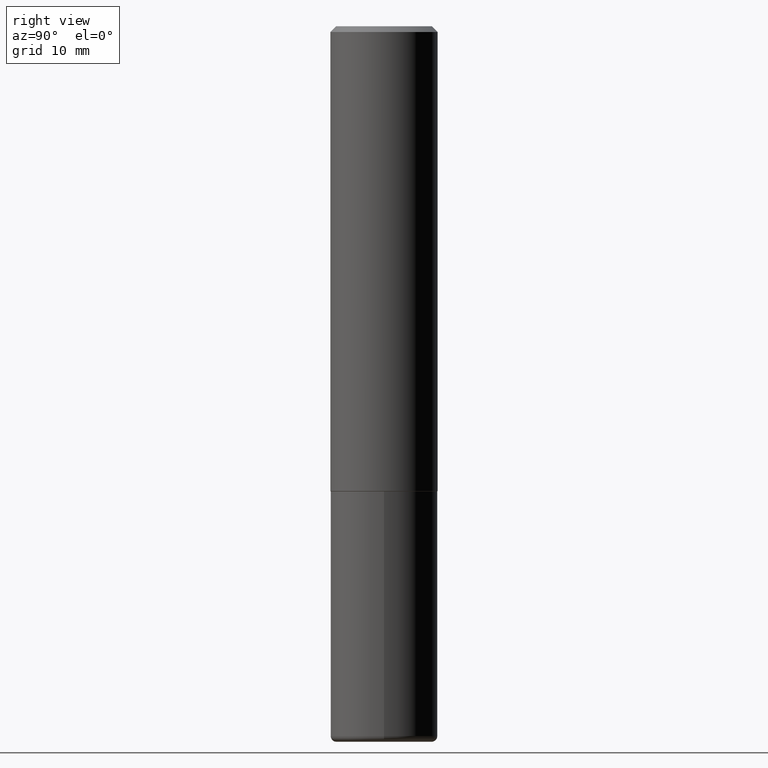
[diagram: clean part render]
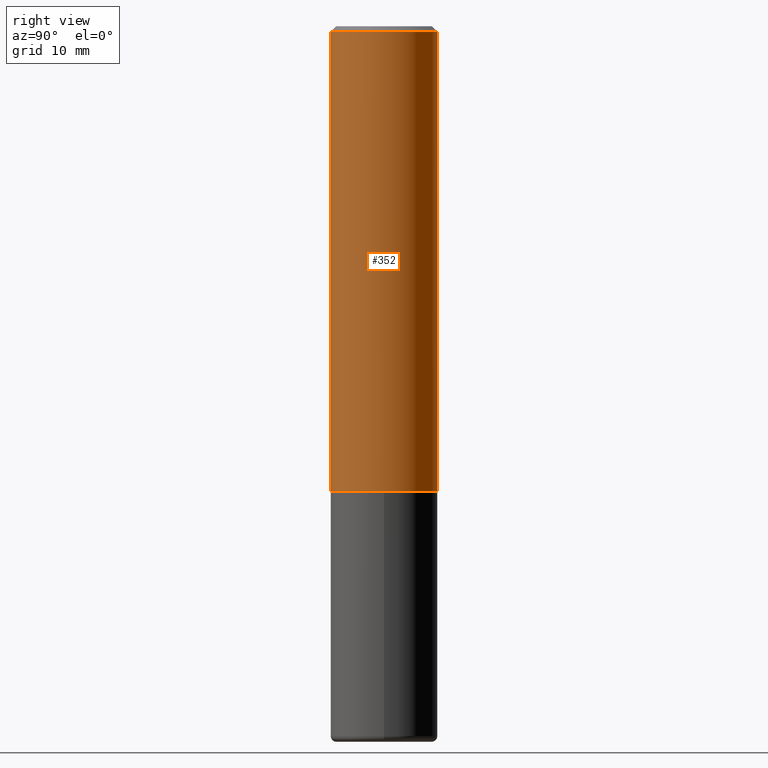
[diagram: same view with one face highlighted and labeled with its STEP entity id]
A machine part, right view. The second image highlights one B-rep face of the part: STEP entity #352.
In plain terms, the highlighted cylindrical surface (partial cylindrical patch) has radius 4.7625 mm, axis along (-0, 0, 1).
Its self-contained STEP definition (entity closure, byte-faithful):
#28 = EDGE_CURVE ( 'NONE', #301, #278, #265, .T. ) ;
#31 = EDGE_CURVE ( 'NONE', #260, #278, #238, .T. ) ;
#42 = CARTESIAN_POINT ( 'NONE',  ( 3.948314948245825329E-29, -5.703284005328150284E-15, -1.624000000000000110 ) ) ;
#45 = DIRECTION ( 'NONE',  ( -2.431228416407527584E-29, 3.511874387517332860E-15, 1.000000000000000000 ) ) ;
#46 = CARTESIAN_POINT ( 'NONE',  ( -1.286343374582161379E-15, -0.1875000000000000555, -0.01999999999999942449 ) ) ;
#60 = DIRECTION ( 'NONE',  ( -2.431228416407527584E-29, 3.511874387517332860E-15, 1.000000000000000000 ) ) ;
#71 = EDGE_CURVE ( 'NONE', #250, #260, #298, .T. ) ;
#91 = AXIS2_PLACEMENT_3D ( 'NONE', #185, #45, #380 ) ;
#98 = FACE_OUTER_BOUND ( 'NONE', #333, .T. ) ;
#111 = ORIENTED_EDGE ( 'NONE', *, *, #417, .F. ) ;
#118 = CARTESIAN_POINT ( 'NONE',  ( 1.332267629550188046E-15, 0.1875000000000000555, -6.584764476595000345E-16 ) ) ;
#163 = VECTOR ( 'NONE', #406, 39.37007874015748143 ) ;
#173 = DIRECTION ( 'NONE',  ( -2.431228416407527584E-29, 3.511874387517332860E-15, 1.000000000000000000 ) ) ;
#185 = CARTESIAN_POINT ( 'NONE',  ( 4.862456832815075803E-31, -7.023748775034694809E-17, -0.02000000000000008021 ) ) ;
#201 = AXIS2_PLACEMENT_3D ( 'NONE', #296, #60, #367 ) ;
#218 = ORIENTED_EDGE ( 'NONE', *, *, #71, .T. ) ;
#230 = VECTOR ( 'NONE', #173, 39.37007874015748143 ) ;
#238 = LINE ( 'NONE', #118, #163 ) ;
#250 = VERTEX_POINT ( 'NONE', #315 ) ;
#260 = VERTEX_POINT ( 'NONE', #414 ) ;
#265 = CIRCLE ( 'NONE', #91, 0.1874999999999999722 ) ;
#278 = VERTEX_POINT ( 'NONE', #410 ) ;
#284 = DIRECTION ( 'NONE',  ( -2.431228416407527584E-29, 3.511874387517332860E-15, 1.000000000000000000 ) ) ;
#296 = CARTESIAN_POINT ( 'NONE',  ( 0.000000000000000000, 0.000000000000000000, 0.000000000000000000 ) ) ;
#298 = CIRCLE ( 'NONE', #349, 0.1875000000000001388 ) ;
#301 = VERTEX_POINT ( 'NONE', #46 ) ;
#310 = ORIENTED_EDGE ( 'NONE', *, *, #28, .F. ) ;
#315 = CARTESIAN_POINT ( 'NONE',  ( -1.309305502066136354E-15, -0.1875000000000058564, -1.623999999999999666 ) ) ;
#330 = LINE ( 'NONE', #361, #230 ) ;
#333 = EDGE_LOOP ( 'NONE', ( #218, #382, #310, #111 ) ) ;
#349 = AXIS2_PLACEMENT_3D ( 'NONE', #42, #284, #408 ) ;
#352 = ADVANCED_FACE ( 'NONE', ( #98 ), #396, .T. ) ;
#361 = CARTESIAN_POINT ( 'NONE',  ( -1.309305502066175205E-15, -0.1875000000000000555, 6.584764476595000345E-16 ) ) ;
#367 = DIRECTION ( 'NONE',  ( -6.982962677686265922E-15, -1.000000000000000000, 3.511874387517332466E-15 ) ) ;
#380 = DIRECTION ( 'NONE',  ( -6.982962677686266711E-15, -1.000000000000000000, 3.505871591869138487E-15 ) ) ;
#382 = ORIENTED_EDGE ( 'NONE', *, *, #31, .T. ) ;
#396 = CYLINDRICAL_SURFACE ( 'NONE', #201, 0.1875000000000000555 ) ;
#406 = DIRECTION ( 'NONE',  ( -2.431228416407527584E-29, 3.511874387517332860E-15, 1.000000000000000000 ) ) ;
#408 = DIRECTION ( 'NONE',  ( -6.982962677686266711E-15, -1.000000000000000000, 2.913971193241878794E-15 ) ) ;
#410 = CARTESIAN_POINT ( 'NONE',  ( 1.309305502066175205E-15, 0.1874999999999999167, -0.02000000000000073941 ) ) ;
#414 = CARTESIAN_POINT ( 'NONE',  ( 1.332267629550208556E-15, 0.1874999999999944489, -1.624000000000000776 ) ) ;
#417 = EDGE_CURVE ( 'NONE', #250, #301, #330, .T. ) ;